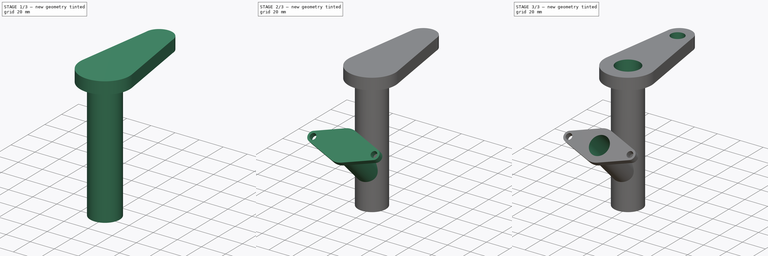
[diagram: build sequence overview — one tinted view per stage of 3, left to right]
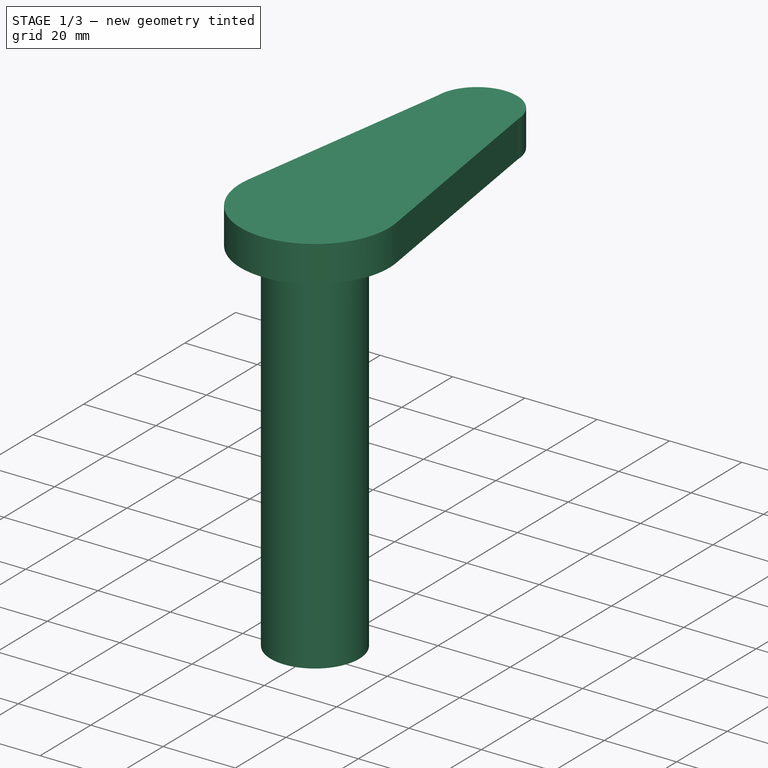
[diagram: stage 1 of 3 — iso view after this stage's code; geometry added in this stage tinted green]
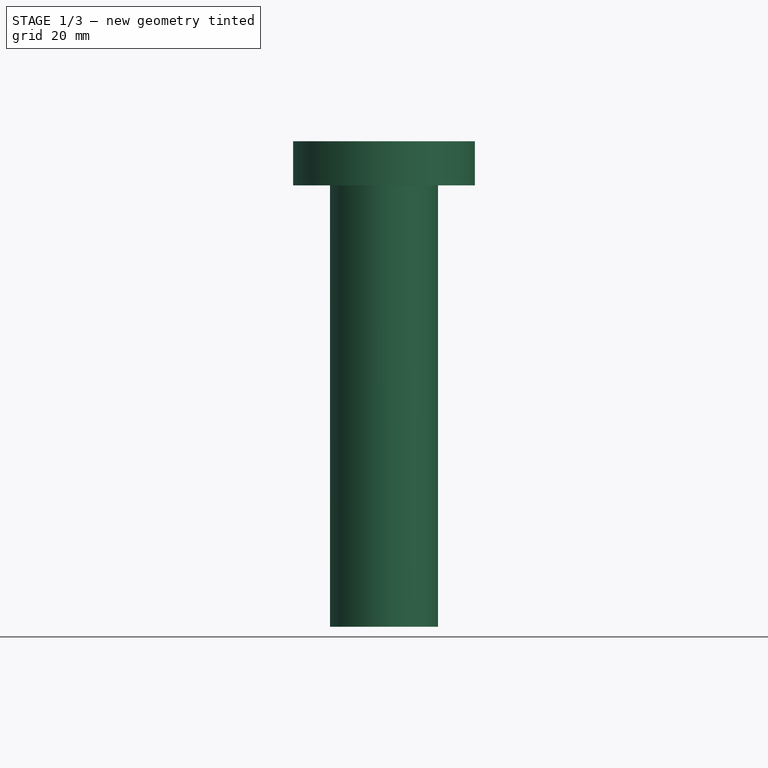
[diagram: stage 1 of 3 — front view after this stage's code; geometry added in this stage tinted green]
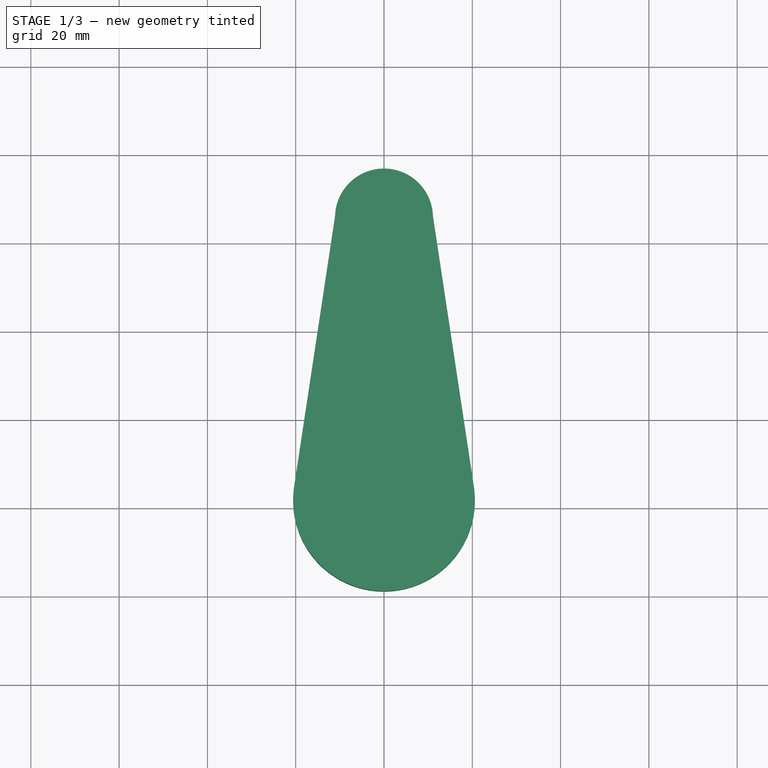
[diagram: stage 1 of 3 — top view after this stage's code; geometry added in this stage tinted green]
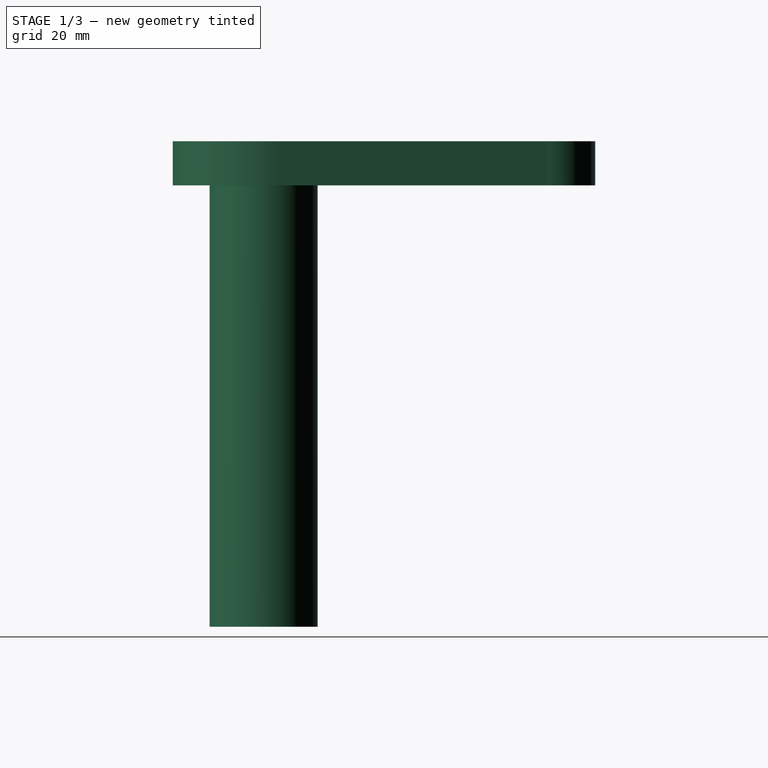
[diagram: stage 1 of 3 — right view after this stage's code; geometry added in this stage tinted green]
FCSTD DOCUMENT  (FreeCAD 0.21R33771 (Git))
Label: ex42
License: All rights reserved
LicenseURL: http://en.wikipedia.org/wiki/All_rights_reserved
objects: Sketcher::SketchObject×6, PartDesign::Pad×4, PartDesign::Pocket×2, PartDesign::Plane×1, PartDesign::Body×1
note: 20 computed .brp shape members not serialized (recipe doc carries the construction recipe); baked Part::Feature solids carry a one-line shape summary decoded from their .brp

FEATURE [Sketcher::SketchObject] Sketch
  FullyConstrained = false
  MapMode = 5
  Support = -> [XY_Plane]
  sketch-geometry (1):
    g0: Circle CenterX=0 CenterY=0 CenterZ=0 NormalX=0 NormalY=0 NormalZ=1 AngleXU=0 Radius=12.2367
  constraints (1):
    c: Coincident(g0,g-1)
FEATURE [PartDesign::Pad] Pad
  Direction = (0,0,1)
  Length = 100
  Length2 = 10
  Profile = -> Sketch
  ReferenceAxis = -> Sketch [N_Axis]
  Refine = true
  Type = 0
FEATURE [Sketcher::SketchObject] Sketch001
  FullyConstrained = false
  MapMode = 5
  Placement = pos=(0,0,100) rot=(0,0,1;0rad)
  Support = -> [Pad]
  sketch-geometry (4):
    g0: ArcOfCircle CenterX=0 CenterY=0 CenterZ=0 NormalX=0 NormalY=0 NormalZ=1 AngleXU=0 Radius=20.5935 StartAngle=2.99144 EndAngle=6.43336
    g1: ArcOfCircle CenterX=0 CenterY=64.0267 CenterZ=0 NormalX=0 NormalY=0 NormalZ=1 AngleXU=0 Radius=11.0992 StartAngle=0.0266207 EndAngle=3.11415
    g2: LineSegment StartX=-11.0951 StartY=64.3313 StartZ=0 EndX=-20.3618 EndY=3.08058 EndZ=0
    g3: LineSegment StartX=11.0953 StartY=64.3221 StartZ=0 EndX=20.3618 EndY=3.08095 EndZ=0
  constraints (6):
    c: Coincident(g0,g-1)
    c: PointOnObject(g1,g-2)
    c: Coincident(g1,g2)
    c: Coincident(g1,g3)
    c: Tangent(g0,g3) = 1.5708
    c: Tangent(g0,g2) = -1.5708
FEATURE [PartDesign::Pad] Pad001
  BaseFeature = -> Pad
  Direction = (0,0,1)
  Length = 10
  Length2 = 10
  Profile = -> Sketch001
  ReferenceAxis = -> Sketch001 [N_Axis]
  Refine = true
  Type = 0
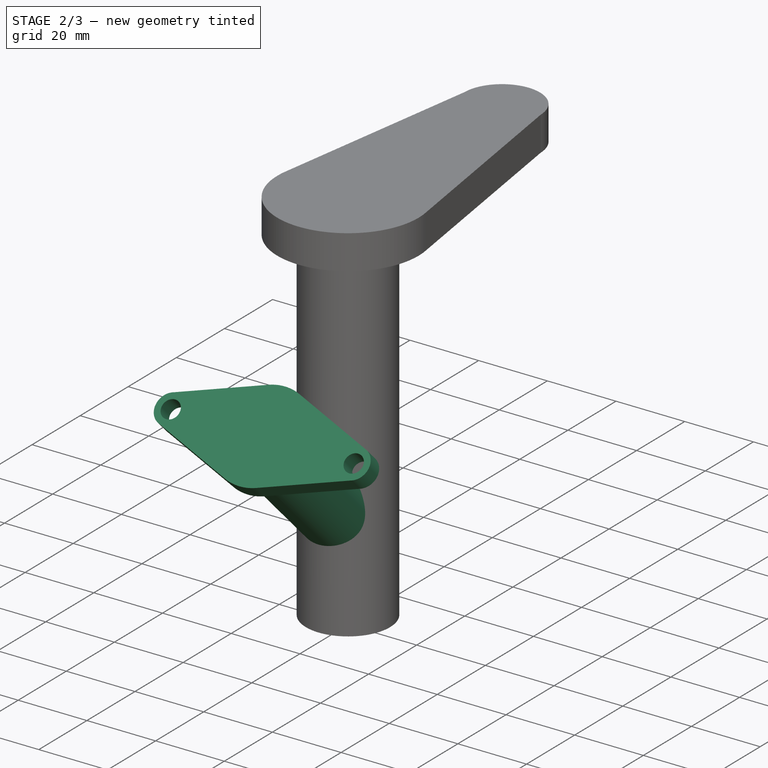
[diagram: stage 2 of 3 — iso view after this stage's code; geometry added in this stage tinted green]
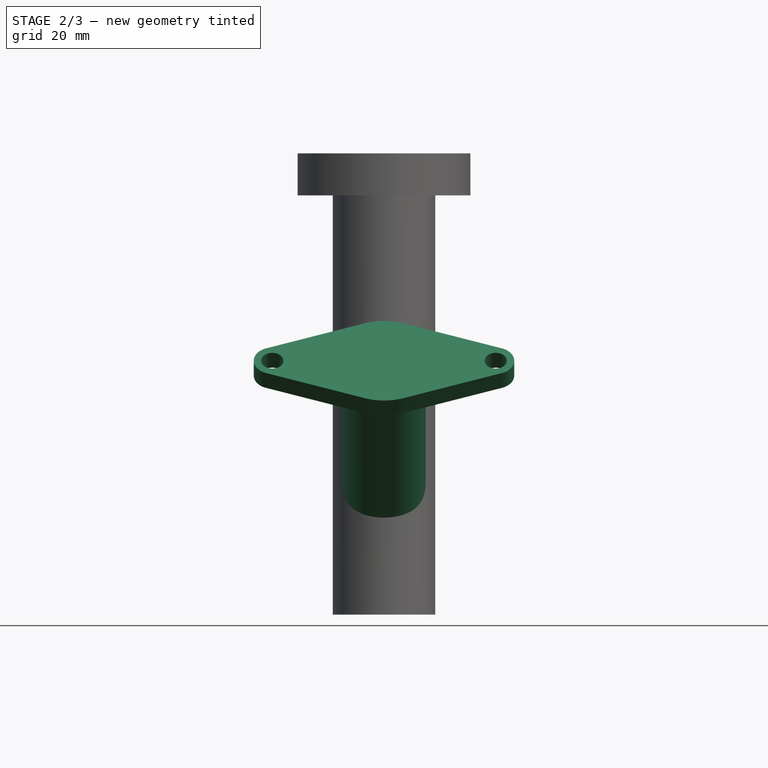
[diagram: stage 2 of 3 — front view after this stage's code; geometry added in this stage tinted green]
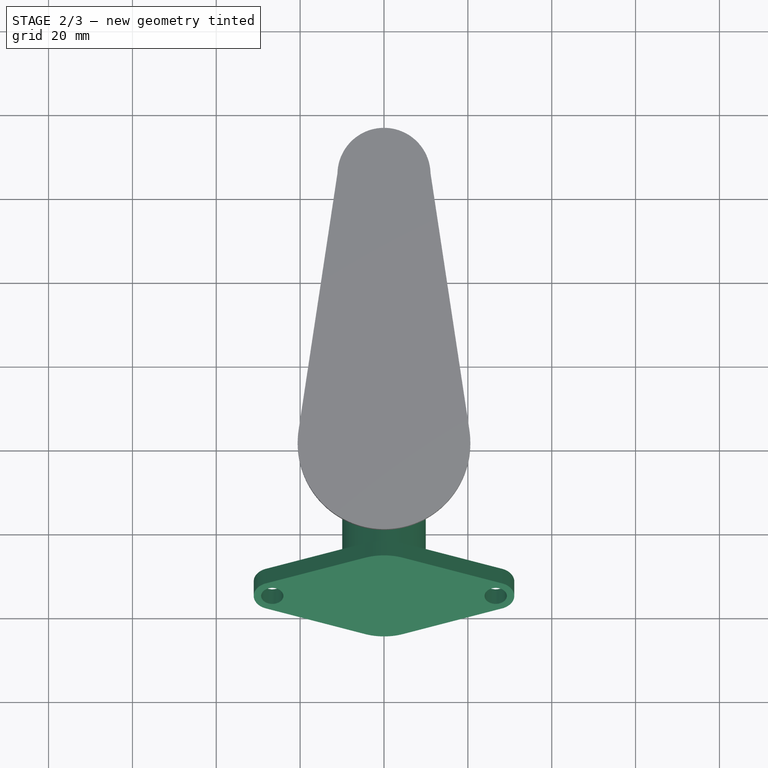
[diagram: stage 2 of 3 — top view after this stage's code; geometry added in this stage tinted green]
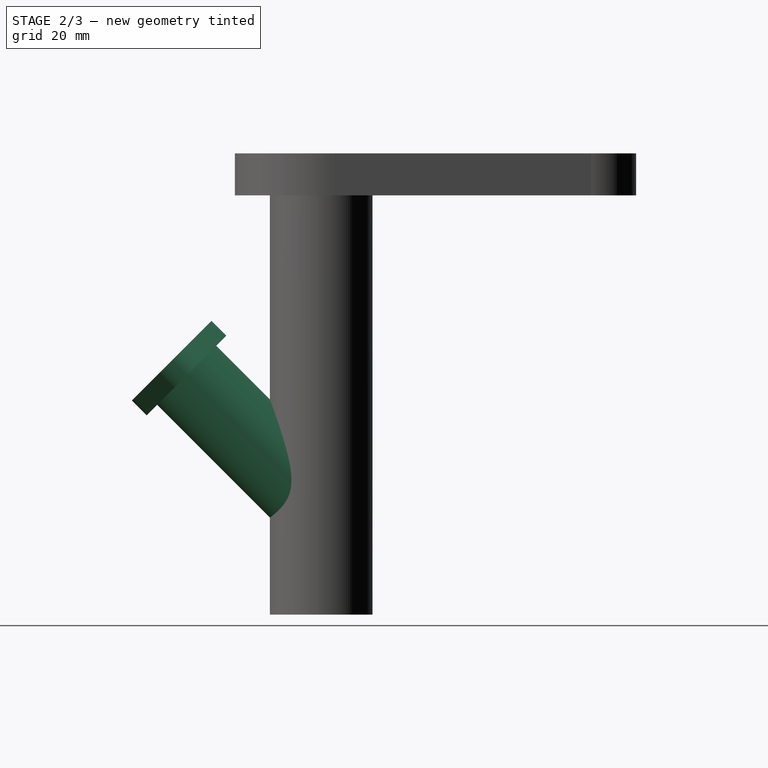
[diagram: stage 2 of 3 — right view after this stage's code; geometry added in this stage tinted green]
FEATURE [PartDesign::Plane] DatumPlane
  AttachmentOffset = pos=(0,-25,0) rot=(0,-0.382683,0.92388;3.14159rad)
  Length = 83.2384
  MapMode = 45
  Placement = pos=(-1.8e-15,-25,50) rot=(0,-0.382683,0.92388;3.14159rad)
  ResizeMode = 0
  Support = -> [Pad001]
  Width = 201.58
FEATURE [Sketcher::SketchObject] Sketch002
  FullyConstrained = false
  MapMode = 5
  Placement = pos=(-1.8e-15,-25,50) rot=(0,-0.382683,0.92388;3.14159rad)
  Support = -> [DatumPlane]
  sketch-geometry (1):
    g0: Circle CenterX=0 CenterY=0 CenterZ=0 NormalX=0 NormalY=0 NormalZ=1 AngleXU=0 Radius=9.96772
  constraints (1):
    c: Coincident(g0,g-1)
FEATURE [PartDesign::Pad] Pad002
  BaseFeature = -> Pad001
  Direction = (-1e-16,-0.707107,0.707107)
  Length = 31
  Length2 = 10
  Profile = -> Sketch002
  ReferenceAxis = -> Sketch002 [N_Axis]
  Refine = true
  Reversed = true
  Type = 4
FEATURE [Sketcher::SketchObject] Sketch003
  FullyConstrained = false
  MapMode = 5
  Placement = pos=(-1.06e-14,-44.5711,44.5711) rot=(1,0,0;0.785398rad)
  Support = -> [Pad002]
  sketch-geometry (16):
    g0: ArcOfCircle CenterX=0 CenterY=17.6069 CenterZ=0 NormalX=0 NormalY=0 NormalZ=1 AngleXU=0 Radius=13.4394 StartAngle=1.2254 EndAngle=1.9162
    g1: ArcOfCircle CenterX=26.64 CenterY=17.6069 CenterZ=0 NormalX=0 NormalY=0 NormalZ=1 AngleXU=0 Radius=4.42663 StartAngle=5.00205 EndAngle=7.56432
    g2: ArcOfCircle CenterX=-26.64 CenterY=17.6069 CenterZ=0 NormalX=0 NormalY=0 NormalZ=1 AngleXU=0 Radius=4.42663 StartAngle=1.86046 EndAngle=4.42272
    g3: LineSegment StartX=0 StartY=17.6069 StartZ=0 EndX=26.64 EndY=17.6069 EndZ=0
    g4: LineSegment StartX=0 StartY=17.6069 StartZ=0 EndX=-26.64 EndY=17.6069 EndZ=0
    g5: LineSegment StartX=-27.9044 StartY=21.8491 StartZ=0 EndX=-4.5502 EndY=30.2525 EndZ=0
    g6: LineSegment StartX=4.5502 StartY=30.2525 StartZ=0 EndX=27.9044 EndY=21.8491 EndZ=0
    g7: LineSegment StartX=27.9044 StartY=13.3647 StartZ=0 EndX=4.5502 EndY=4.96124 EndZ=0
    g8: LineSegment StartX=-4.5502 StartY=4.96124 StartZ=0 EndX=-27.9044 EndY=13.3647 EndZ=0
    g9: LineSegment StartX=-4.5502 StartY=30.2525 StartZ=0 EndX=-4.5502 EndY=4.96124 EndZ=0
    g10: LineSegment StartX=4.5502 StartY=30.2525 StartZ=0 EndX=4.5502 EndY=4.96124 EndZ=0
    g11: LineSegment StartX=27.9044 StartY=21.8491 StartZ=0 EndX=27.9044 EndY=13.3647 EndZ=0
    g12: LineSegment StartX=-27.9044 StartY=21.8491 StartZ=0 EndX=-27.9044 EndY=13.3647 EndZ=0
    g13: Circle CenterX=-26.64 CenterY=17.6069 CenterZ=0 NormalX=0 NormalY=0 NormalZ=1 AngleXU=0 Radius=2.65484
    g14: Circle CenterX=26.64 CenterY=17.6069 CenterZ=0 NormalX=0 NormalY=0 NormalZ=1 AngleXU=0 Radius=2.65484
    g15: ArcOfCircle CenterX=0 CenterY=17.6069 CenterZ=0 NormalX=0 NormalY=0 NormalZ=1 AngleXU=0 Radius=13.4394 StartAngle=4.36699 EndAngle=5.05779
  constraints (38):
    c: PointOnObject(g0,g-2)
    c: Equal(g2,g1)
    c: Coincident(g3,g0)
    c: Horizontal(g3)
    c: Coincident(g4,g0)
    c: Horizontal(g4)
    c: Equal(g4,g3)
    c: Coincident(g1,g3)
    c: Coincident(g2,g4)
    c: Tangent(g7,g0)
    c: PointOnObject(g8,g0)
    c: Coincident(g9,g5)
    c: Coincident(g9,g8)
    c: Vertical(g9)
    c: Coincident(g10,g6)
    c: Coincident(g10,g7)
    c: Vertical(g10)
    c: Symmetric(g5,g7,g0)
    c: Coincident(g11,g6)
    c: Coincident(g11,g7)
    c: Coincident(g12,g5)
    c: Coincident(g12,g8)
    c: Vertical(g12)
    c: Vertical(g11)
    c: Equal(g12,g11)
    c: Coincident(g0,g6)
    c: Coincident(g1,g6)
    c: Coincident(g1,g7)
    c: Coincident(g2,g12)
    c: Coincident(g2,g5)
    c: Coincident(g13,g2)
    c: Coincident(g14,g1)
    c: Equal(g14,g13)
    c: Equal(g0,g15)
    c: Coincident(g0,g5)
    c: Coincident(g0,g15)
    c: PointOnObject(g15,g8)
    c: PointOnObject(g15,g7)
FEATURE [PartDesign::Pad] Pad003
  BaseFeature = -> Pad002
  Direction = (-2e-16,-0.707107,0.707107)
  Length = 5
  Length2 = 10
  Profile = -> Sketch003
  ReferenceAxis = -> Sketch003 [N_Axis]
  Refine = true
  Type = 0
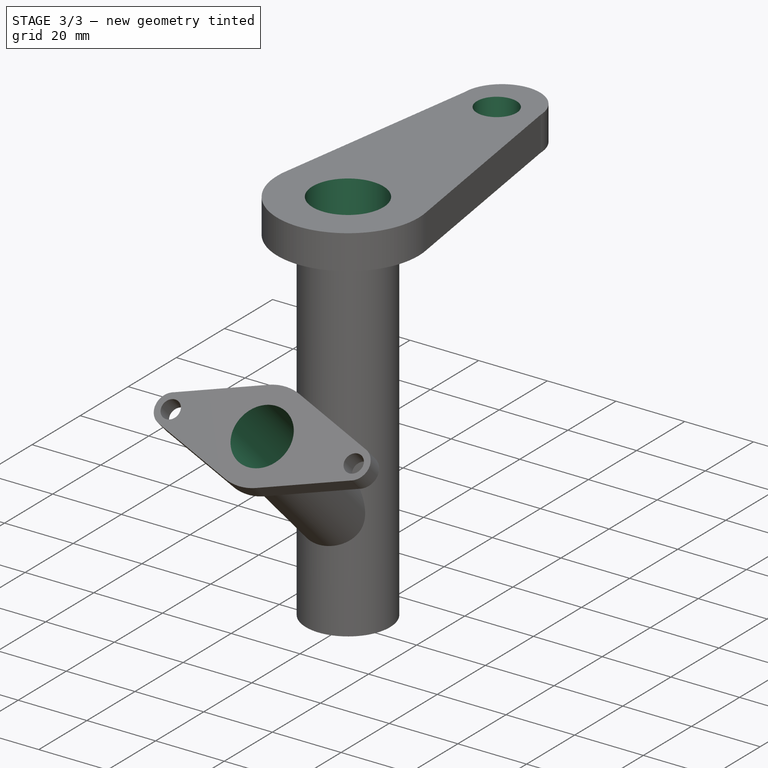
[diagram: stage 3 of 3 — iso view after this stage's code; geometry added in this stage tinted green]
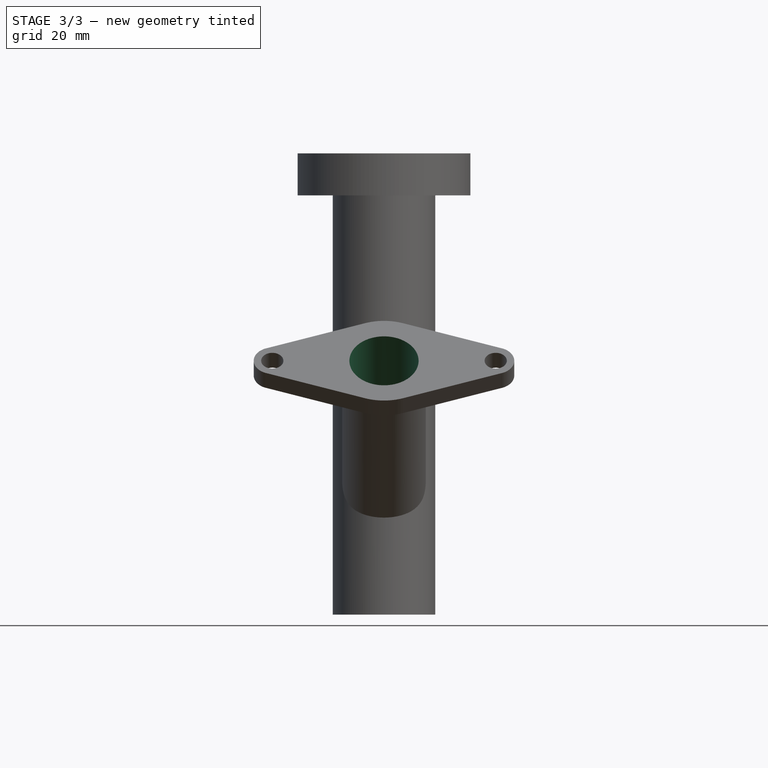
[diagram: stage 3 of 3 — front view after this stage's code; geometry added in this stage tinted green]
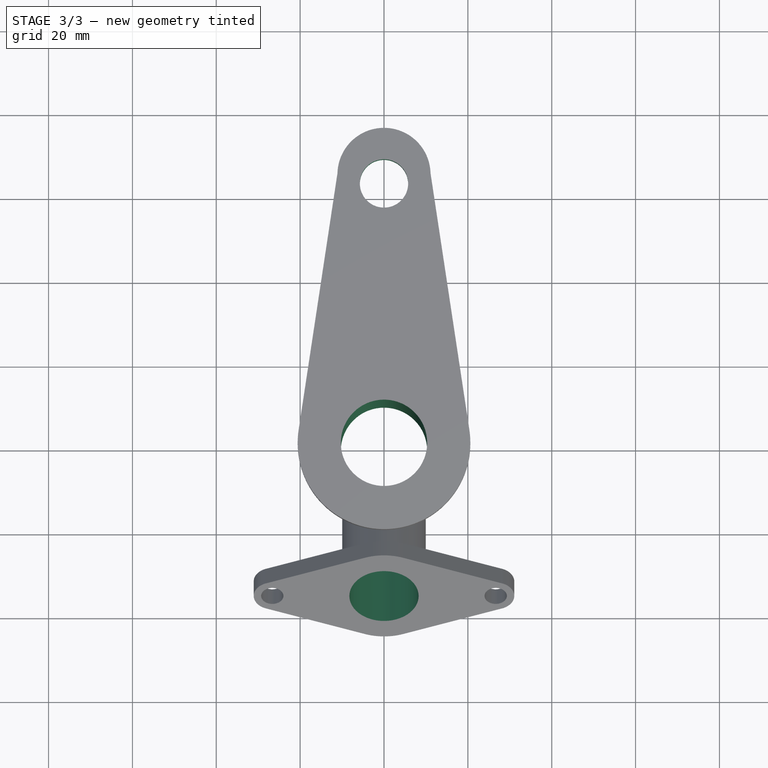
[diagram: stage 3 of 3 — top view after this stage's code; geometry added in this stage tinted green]
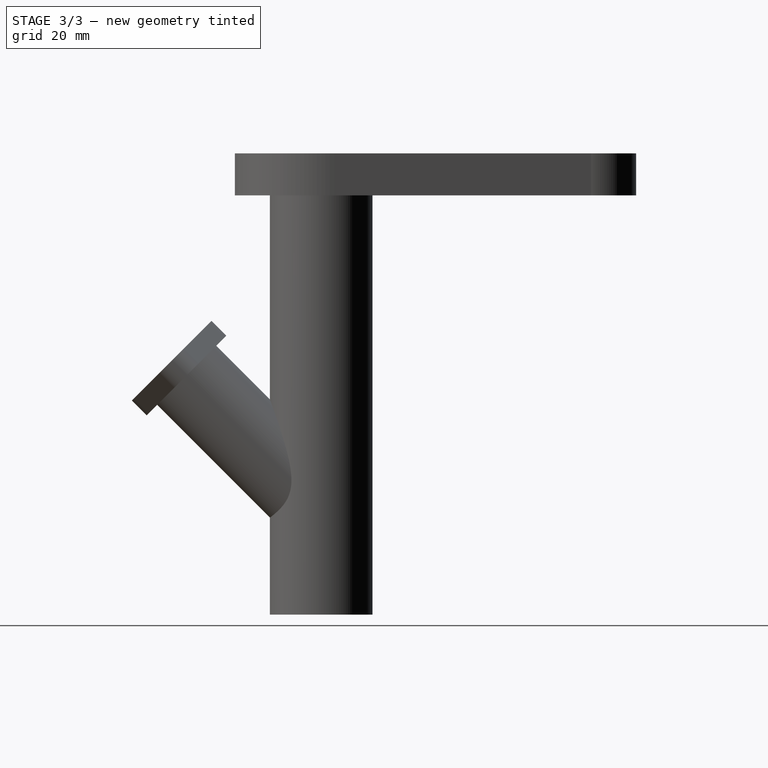
[diagram: stage 3 of 3 — right view after this stage's code; geometry added in this stage tinted green]
FEATURE [Sketcher::SketchObject] Sketch004
  FullyConstrained = false
  MapMode = 5
  Placement = pos=(0,0,110) rot=(0,0,1;0rad)
  Support = -> [Pad003]
  sketch-geometry (2):
    g0: Circle CenterX=0 CenterY=0 CenterZ=0 NormalX=0 NormalY=0 NormalZ=1 AngleXU=0 Radius=10.2916
    g1: Circle CenterX=0 CenterY=61.8648 CenterZ=0 NormalX=0 NormalY=0 NormalZ=1 AngleXU=0 Radius=5.76045
  constraints (2):
    c: Coincident(g0,g-1)
    c: PointOnObject(g1,g-2)
FEATURE [PartDesign::Pocket] Pocket
  BaseFeature = -> Pad003
  Direction = (0,0,-1)
  Length = 5
  Length2 = 5
  Profile = -> Sketch004
  ReferenceAxis = -> Sketch004 [N_Axis]
  Refine = true
  Type = 1
FEATURE [Sketcher::SketchObject] Sketch005
  FullyConstrained = false
  MapMode = 5
  Placement = pos=(-1.34e-14,-48.1066,48.1066) rot=(1,0,0;0.785398rad)
  Support = -> [Pocket]
  sketch-geometry (1):
    g0: Circle CenterX=0 CenterY=17.5627 CenterZ=0 NormalX=0 NormalY=0 NormalZ=1 AngleXU=0 Radius=8.25237
  constraints (1):
    c: PointOnObject(g0,g-2)
FEATURE [PartDesign::Pocket] Pocket001
  BaseFeature = -> Pocket
  Direction = (2e-16,0.707107,-0.707107)
  Length = 56
  Length2 = 5
  Profile = -> Sketch005
  ReferenceAxis = -> Sketch005 [N_Axis]
  Refine = true
  Type = 0
FEATURE [PartDesign::Body] Body
  Group = -> [Sketch,Pad,Sketch001,Pad001,DatumPlane,Sketch002,Pad002,Sketch003,Pad003,Sketch004,Pocket,Sketch005,Pocket001]
  Origin = -> Origin
  Tip = -> Pocket001
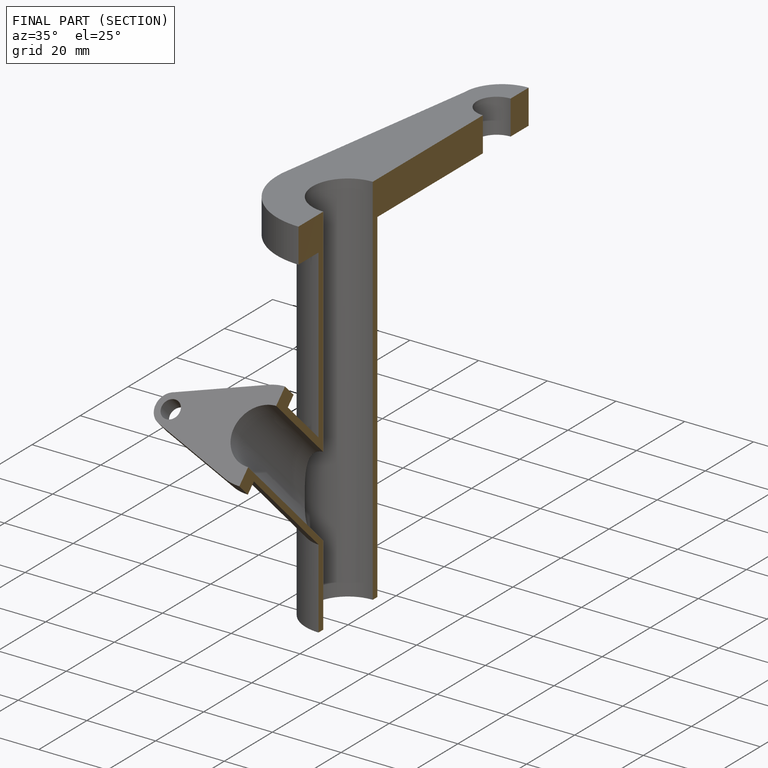
[diagram: finished part — half-section view (interior)]
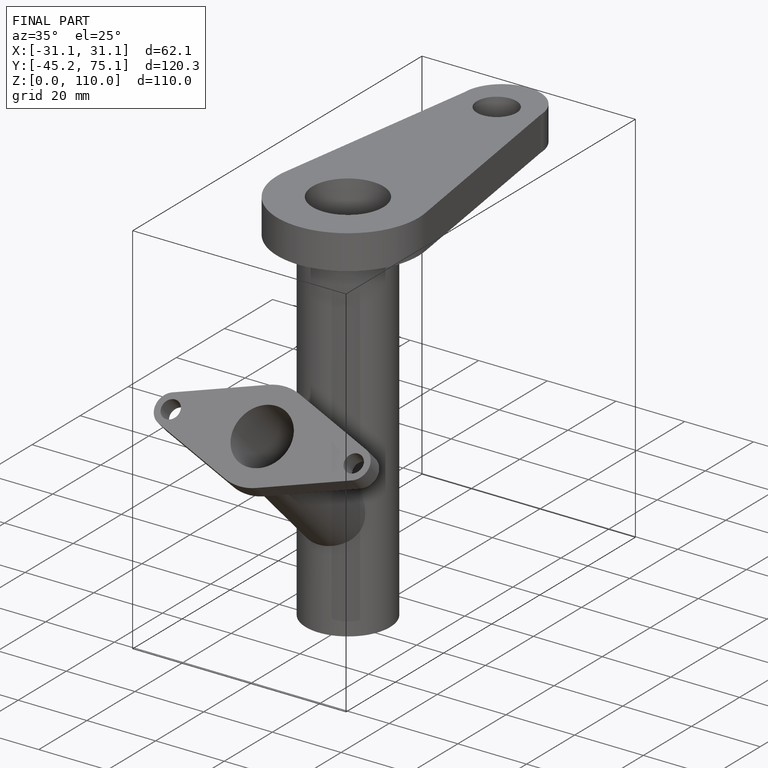
[diagram: finished part — iso view with bounding-box wireframe]
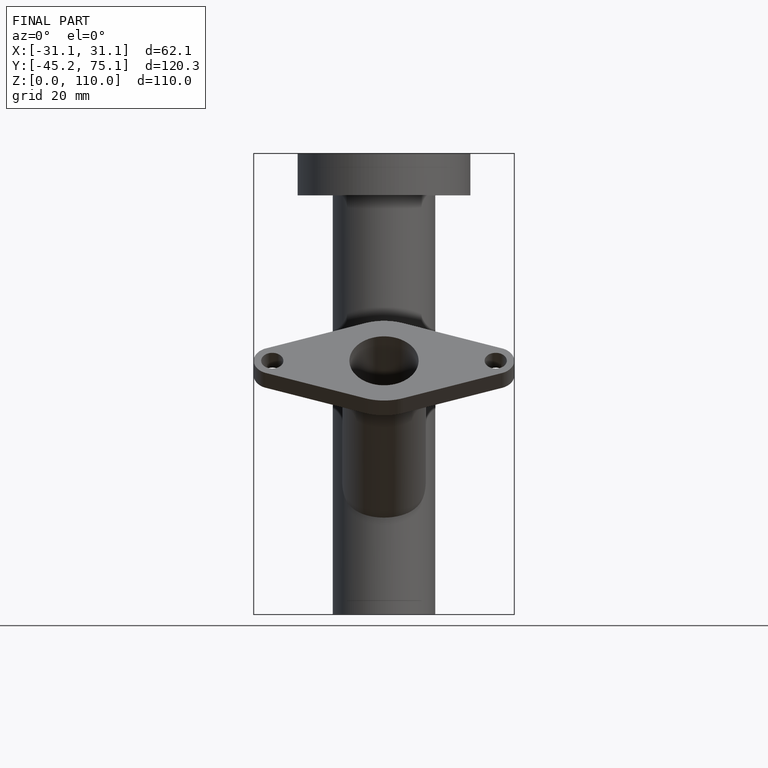
[diagram: finished part — front view with bounding-box wireframe]
